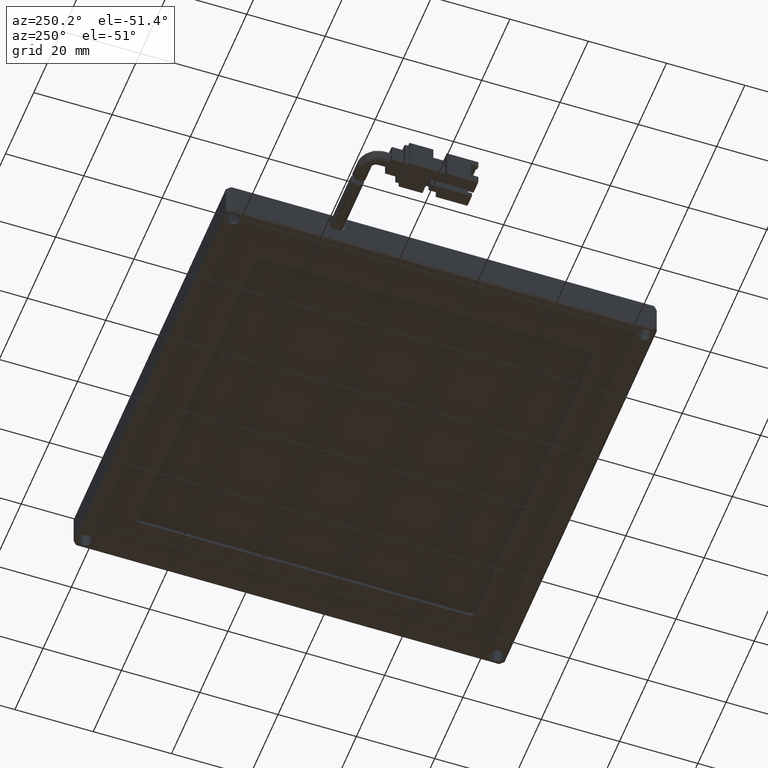
[diagram: clean part render]
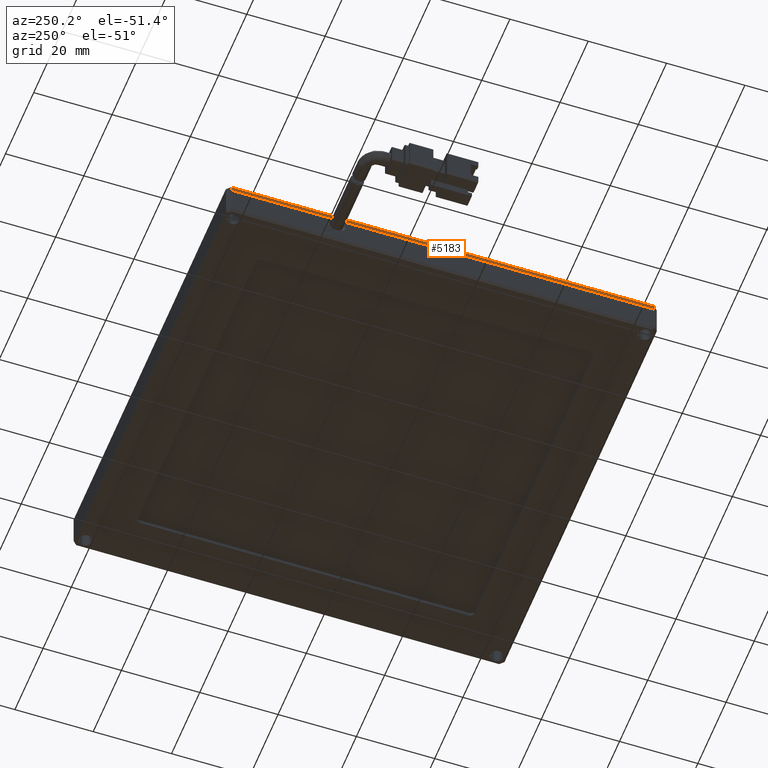
[diagram: same view with one face highlighted and labeled with its STEP entity id]
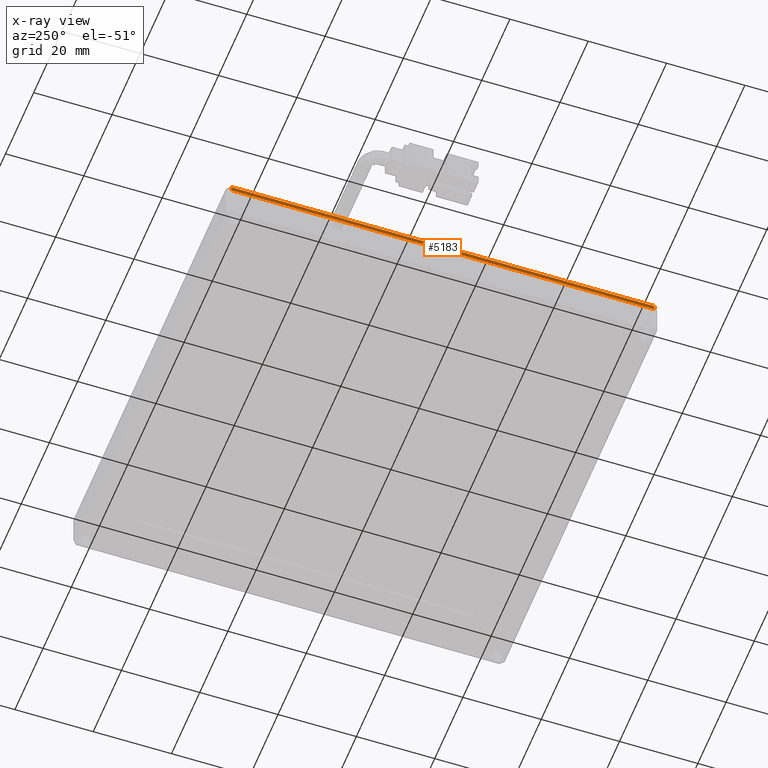
[diagram: x-ray of the same camera — body ghosted, the highlighted face saturated]
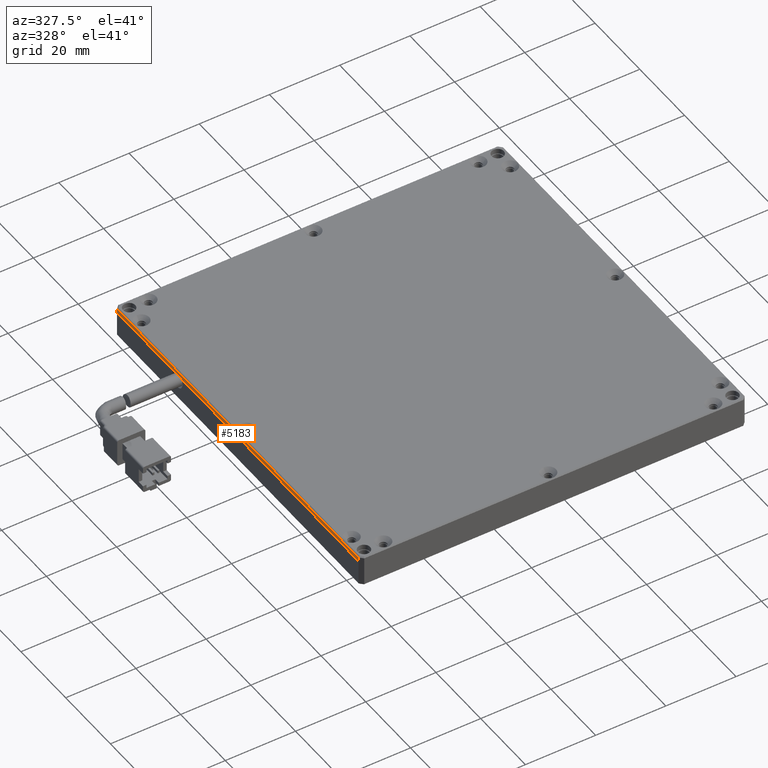
[diagram: same view with one face highlighted and labeled with its STEP entity id]
A machine part, auxiliary view. The second image highlights one B-rep face of the part: STEP entity #5183.
The next image is the same camera in x-ray: the body ghosted, the highlighted face saturated — about 0% of this face is hidden behind the body in this view.
A second angle (auxiliary view) of the same face is appended — the face is thin or edge-on in the first view.
In plain terms, the highlighted planar face has unit normal (1, -0, 0).
Its self-contained STEP definition (entity closure, byte-faithful):
#659 = CARTESIAN_POINT ( 'NONE',  ( -60.14509354715839600, -45.59984726995055800, 1.199999999976369300 ) ) ;
#724 = VERTEX_POINT ( 'NONE', #659 ) ;
#833 = VECTOR ( 'NONE', #11425, 1000.000000000000000 ) ;
#1675 = AXIS2_PLACEMENT_3D ( 'NONE', #11394, #3179, #12799 ) ;
#2934 = DIRECTION ( 'NONE',  ( -0.0000000000000000000, -0.0000000000000000000, -1.000000000000000000 ) ) ;
#2949 = EDGE_CURVE ( 'NONE', #12282, #13864, #6777, .T. ) ;
#3179 = DIRECTION ( 'NONE',  ( 1.000000000000000000, -0.0000000000000000000, 0.0000000000000000000 ) ) ;
#3209 = CARTESIAN_POINT ( 'NONE',  ( -60.14509354715681900, -45.59984726995214300, 0.5999999999763499000 ) ) ;
#3340 = ORIENTED_EDGE ( 'NONE', *, *, #15953, .T. ) ;
#3802 = LINE ( 'NONE', #8773, #7410 ) ;
#5183 = ADVANCED_FACE ( 'NONE', ( #7173 ), #5867, .F. ) ;
#5412 = VERTEX_POINT ( 'NONE', #17554 ) ;
#5864 = CARTESIAN_POINT ( 'NONE',  ( -60.14509354715851000, 62.40015273005043600, 1.199999999976435200 ) ) ;
#5867 = PLANE ( 'NONE',  #1675 ) ;
#6753 = VECTOR ( 'NONE', #8262, 1000.000000000000000 ) ;
#6777 = LINE ( 'NONE', #9809, #10442 ) ;
#6923 = ORIENTED_EDGE ( 'NONE', *, *, #11227, .F. ) ;
#7173 = FACE_OUTER_BOUND ( 'NONE', #10591, .T. ) ;
#7410 = VECTOR ( 'NONE', #17121, 1000.000000000000000 ) ;
#8262 = DIRECTION ( 'NONE',  ( -0.0000000000000000000, -1.000000000000000000, -0.0000000000000000000 ) ) ;
#8773 = CARTESIAN_POINT ( 'NONE',  ( -60.14509354716000200, 8.400152730050001200, -2.364688306277999500E-011 ) ) ;
#9410 = ORIENTED_EDGE ( 'NONE', *, *, #2949, .T. ) ;
#9809 = CARTESIAN_POINT ( 'NONE',  ( -60.14509354715702500, 62.40015273005192100, 0.5999999999763500100 ) ) ;
#10442 = VECTOR ( 'NONE', #2934, 1000.000000000000000 ) ;
#10521 = EDGE_CURVE ( 'NONE', #5412, #13864, #3802, .T. ) ;
#10591 = EDGE_LOOP ( 'NONE', ( #9410, #16248, #3340, #6923 ) ) ;
#10683 = LINE ( 'NONE', #3209, #833 ) ;
#11227 = EDGE_CURVE ( 'NONE', #12282, #724, #17850, .T. ) ;
#11394 = CARTESIAN_POINT ( 'NONE',  ( -60.14509354715998800, -47.75984726994998700, 1.386760248563999800 ) ) ;
#11425 = DIRECTION ( 'NONE',  ( 0.0000000000000000000, 0.0000000000000000000, 1.000000000000000000 ) ) ;
#12282 = VERTEX_POINT ( 'NONE', #5864 ) ;
#12552 = CARTESIAN_POINT ( 'NONE',  ( -60.14509354715865200, 62.40015273005109000, -2.364693727288807900E-011 ) ) ;
#12799 = DIRECTION ( 'NONE',  ( 0.0000000000000000000, 0.0000000000000000000, -1.000000000000000000 ) ) ;
#13864 = VERTEX_POINT ( 'NONE', #12552 ) ;
#15145 = CARTESIAN_POINT ( 'NONE',  ( -60.14509354715999500, 8.400152730050001200, 1.199999999976435700 ) ) ;
#15953 = EDGE_CURVE ( 'NONE', #5412, #724, #10683, .T. ) ;
#16248 = ORIENTED_EDGE ( 'NONE', *, *, #10521, .F. ) ;
#17121 = DIRECTION ( 'NONE',  ( 0.0000000000000000000, 1.000000000000000000, 0.0000000000000000000 ) ) ;
#17554 = CARTESIAN_POINT ( 'NONE',  ( -60.14509354715853800, -45.59984726995119800, -2.364691016783376700E-011 ) ) ;
#17850 = LINE ( 'NONE', #15145, #6753 ) ;